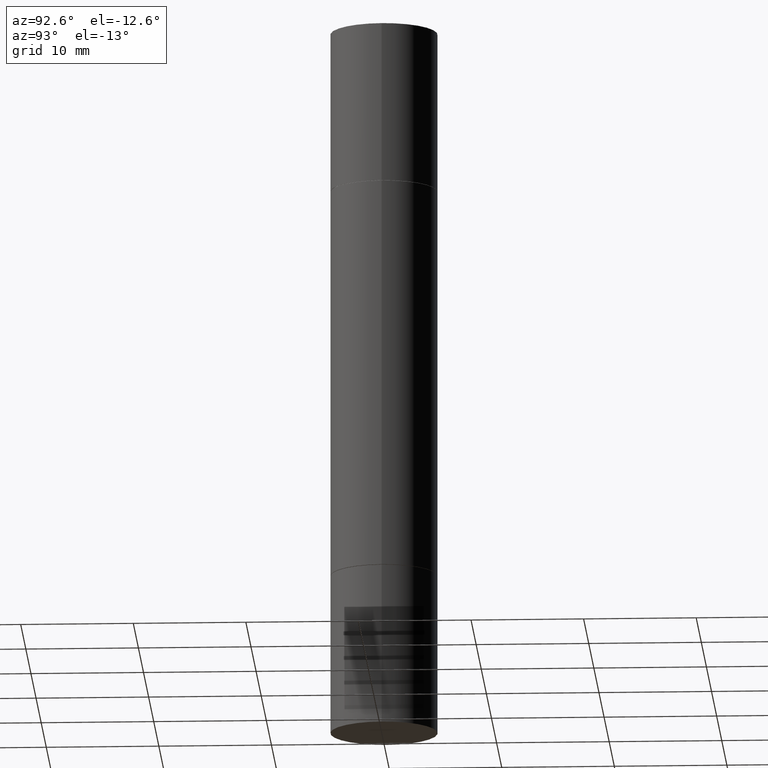
[diagram: clean part render]
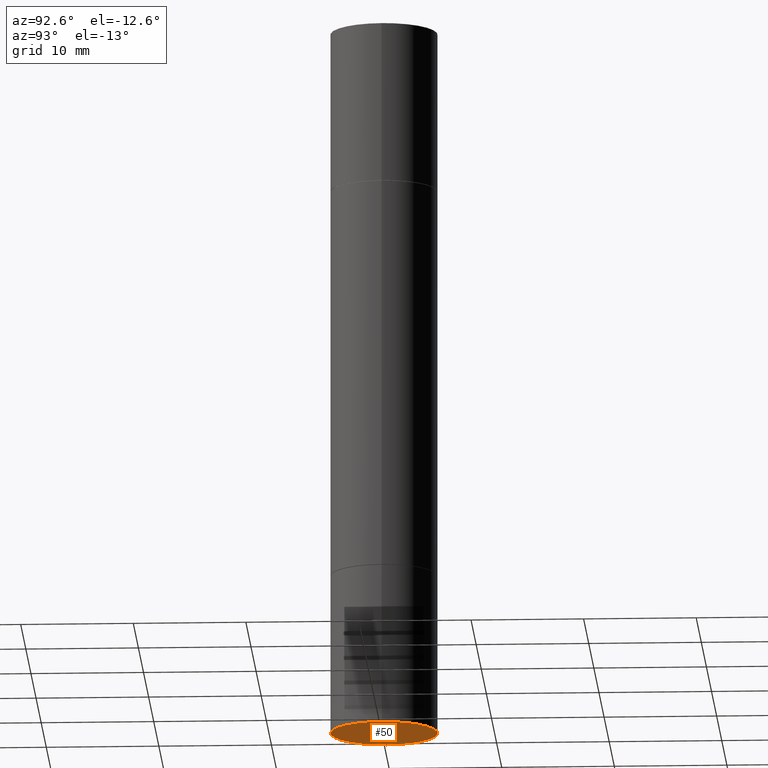
[diagram: same view with one face highlighted and labeled with its STEP entity id]
A machine part, auxiliary view. The second image highlights one B-rep face of the part: STEP entity #50.
In plain terms, the highlighted planar face has unit normal (0, -0, -1).
Its self-contained STEP definition (entity closure, byte-faithful):
#13 = DIRECTION ( 'NONE',  ( -2.445468806185136597E-29, 3.491481338843145583E-15, 1.000000000000000000 ) ) ;
#22 = DIRECTION ( 'NONE',  ( -1.000000000000000000, 6.982962677686265922E-15, -4.876176775795935793E-29 ) ) ;
#50 = ADVANCED_FACE ( 'NONE', ( #192 ), #294, .T. ) ;
#52 = DIRECTION ( 'NONE',  ( 1.000000000000000000, -6.982962677686266711E-15, 0.000000000000000000 ) ) ;
#128 = DIRECTION ( 'NONE',  ( 1.000000000000000000, -6.982962677686266711E-15, 0.000000000000000000 ) ) ;
#167 = DIRECTION ( 'NONE',  ( -2.445468806185136597E-29, 3.491481338843145583E-15, 1.000000000000000000 ) ) ;
#170 = CARTESIAN_POINT ( 'NONE',  ( 6.113672015462842613E-29, -8.728703347107864943E-15, -2.500000000000000000 ) ) ;
#172 = CARTESIAN_POINT ( 'NONE',  ( 6.113672015462842613E-29, -8.728703347107864943E-15, -2.500000000000000000 ) ) ;
#191 = EDGE_CURVE ( 'NONE', #225, #677, #658, .T. ) ;
#192 = FACE_OUTER_BOUND ( 'NONE', #572, .T. ) ;
#225 = VERTEX_POINT ( 'NONE', #436 ) ;
#242 = AXIS2_PLACEMENT_3D ( 'NONE', #170, #167, #52 ) ;
#249 = AXIS2_PLACEMENT_3D ( 'NONE', #172, #13, #128 ) ;
#258 = AXIS2_PLACEMENT_3D ( 'NONE', #445, #282, #22 ) ;
#282 = DIRECTION ( 'NONE',  ( 2.438088387897960049E-29, -3.491481338843145188E-15, -1.000000000000000000 ) ) ;
#294 = PLANE ( 'NONE',  #258 ) ;
#369 = CARTESIAN_POINT ( 'NONE',  ( 0.1875000000000000278, -1.003800884917403995E-14, -2.500000000000000000 ) ) ;
#418 = CIRCLE ( 'NONE', #242, 0.1875000000000000278 ) ;
#436 = CARTESIAN_POINT ( 'NONE',  ( -0.1875000000000000278, -6.415329461342752645E-15, -2.500000000000000000 ) ) ;
#445 = CARTESIAN_POINT ( 'NONE',  ( 1.309305502066236145E-15, 0.1874999999999912847, -2.500000000000000444 ) ) ;
#507 = ORIENTED_EDGE ( 'NONE', *, *, #675, .F. ) ;
#572 = EDGE_LOOP ( 'NONE', ( #507, #637 ) ) ;
#637 = ORIENTED_EDGE ( 'NONE', *, *, #191, .F. ) ;
#658 = CIRCLE ( 'NONE', #249, 0.1875000000000000278 ) ;
#675 = EDGE_CURVE ( 'NONE', #677, #225, #418, .T. ) ;
#677 = VERTEX_POINT ( 'NONE', #369 ) ;